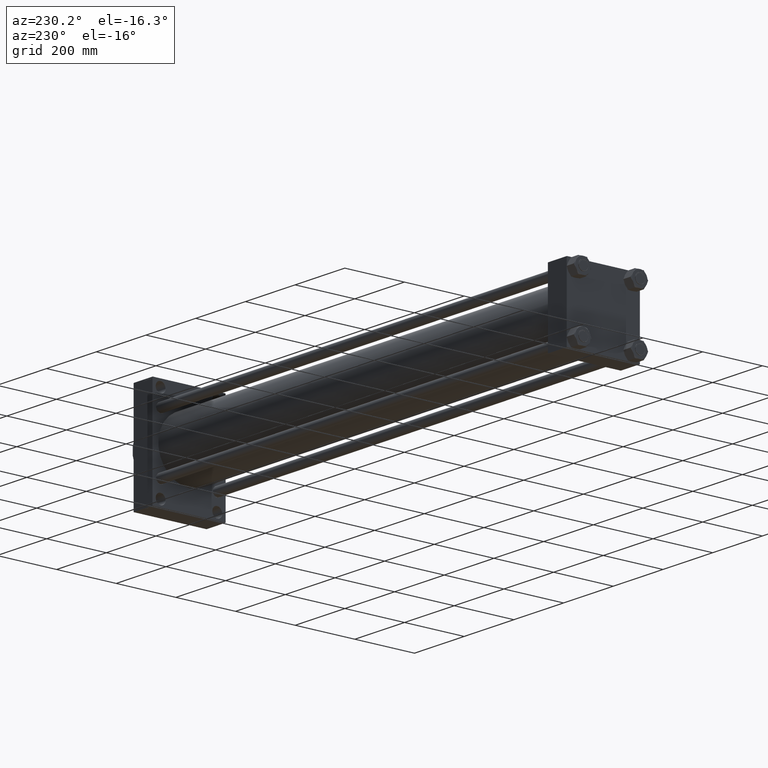
[diagram: clean part render]
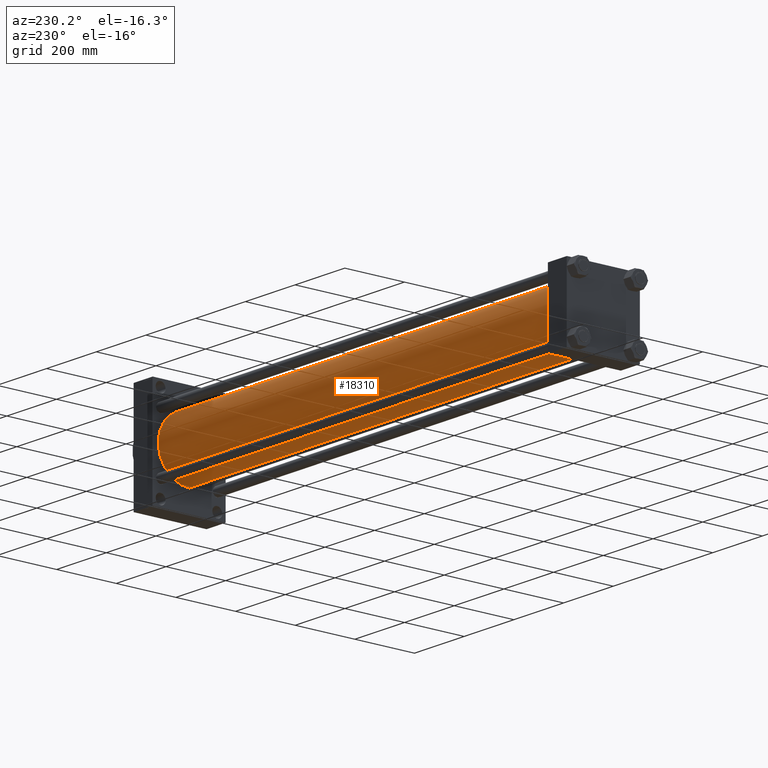
[diagram: same view with one face highlighted and labeled with its STEP entity id]
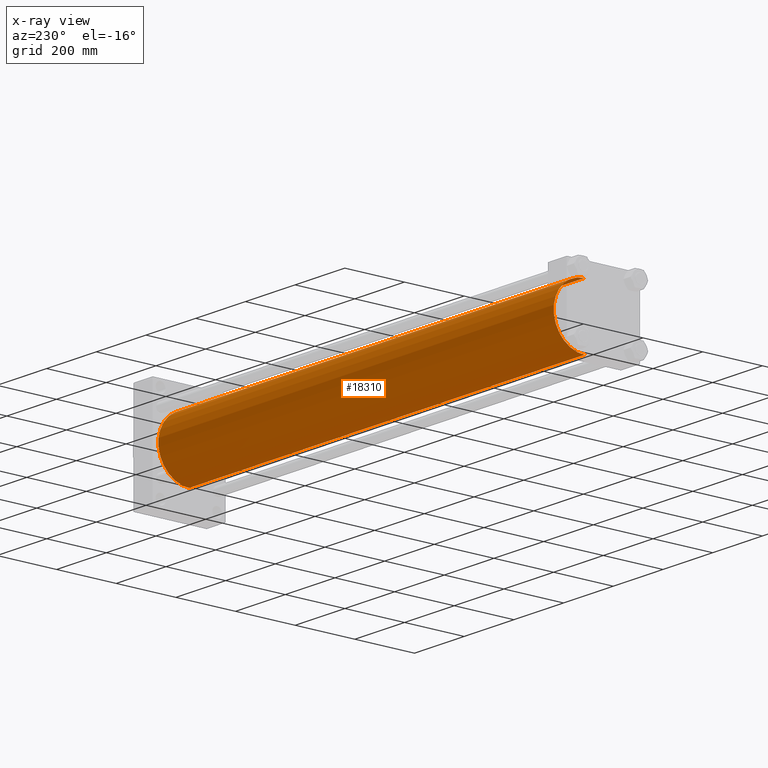
[diagram: x-ray of the same camera — body ghosted, the highlighted face saturated]
A machine part, auxiliary view. The second image highlights one B-rep face of the part: STEP entity #18310.
The next image is the same camera in x-ray: the body ghosted, the highlighted face saturated — about 0% of this face is hidden behind the body in this view.
In plain terms, the highlighted cylindrical surface (partial cylindrical patch) has radius 103 mm, axis along (-1, -0, -0).
Its self-contained STEP definition (entity closure, byte-faithful):
#3579 = AXIS2_PLACEMENT_3D ( 'NONE', #23454, #38129, #5592 ) ;
#4600 = CARTESIAN_POINT ( 'NONE',  ( 1667.000000000000000, -2.602085213965210642E-15, 103.0000000000000000 ) ) ;
#5155 = DIRECTION ( 'NONE',  ( 1.000000000000000000, -0.000000000000000000, -0.000000000000000000 ) ) ;
#5592 = DIRECTION ( 'NONE',  ( 0.000000000000000000, 0.000000000000000000, 1.000000000000000000 ) ) ;
#7918 = EDGE_CURVE ( 'NONE', #10544, #17189, #13099, .T. ) ;
#9227 = CYLINDRICAL_SURFACE ( 'NONE', #3579, 103.0000000000000000 ) ;
#10498 = VECTOR ( 'NONE', #21963, 1000.000000000000000 ) ;
#10544 = VERTEX_POINT ( 'NONE', #23496 ) ;
#12048 = ORIENTED_EDGE ( 'NONE', *, *, #18460, .F. ) ;
#12835 = FACE_OUTER_BOUND ( 'NONE', #30130, .T. ) ;
#13099 = LINE ( 'NONE', #16942, #42860 ) ;
#13894 = ORIENTED_EDGE ( 'NONE', *, *, #43588, .F. ) ;
#15098 = CARTESIAN_POINT ( 'NONE',  ( 1667.000000000000000, -2.602085213965210642E-15, 0.000000000000000000 ) ) ;
#15792 = CARTESIAN_POINT ( 'NONE',  ( 1667.000000000000000, -2.602085213965210642E-15, 103.0000000000000000 ) ) ;
#16247 = CARTESIAN_POINT ( 'NONE',  ( 76.00000000000007105, -2.602085213965210642E-15, 0.000000000000000000 ) ) ;
#16942 = CARTESIAN_POINT ( 'NONE',  ( 1667.000000000000000, 1.001177681725252697E-14, -103.0000000000000000 ) ) ;
#17157 = EDGE_CURVE ( 'NONE', #17189, #38064, #45084, .T. ) ;
#17189 = VERTEX_POINT ( 'NONE', #27812 ) ;
#18310 = ADVANCED_FACE ( 'NONE', ( #12835 ), #9227, .T. ) ;
#18460 = EDGE_CURVE ( 'NONE', #40247, #38064, #37617, .T. ) ;
#19893 = AXIS2_PLACEMENT_3D ( 'NONE', #15098, #37261, #40386 ) ;
#20813 = DIRECTION ( 'NONE',  ( 0.000000000000000000, 0.000000000000000000, 1.000000000000000000 ) ) ;
#21446 = CIRCLE ( 'NONE', #19893, 103.0000000000000000 ) ;
#21963 = DIRECTION ( 'NONE',  ( -1.000000000000000000, -0.000000000000000000, -0.000000000000000000 ) ) ;
#23454 = CARTESIAN_POINT ( 'NONE',  ( 1667.000000000000000, -2.602085213965210642E-15, 0.000000000000000000 ) ) ;
#23496 = CARTESIAN_POINT ( 'NONE',  ( 1667.000000000000000, 1.001177681725252697E-14, -103.0000000000000000 ) ) ;
#27812 = CARTESIAN_POINT ( 'NONE',  ( 76.00000000000007105, 1.001177681725252697E-14, -103.0000000000000000 ) ) ;
#28761 = ORIENTED_EDGE ( 'NONE', *, *, #17157, .T. ) ;
#30130 = EDGE_LOOP ( 'NONE', ( #13894, #36292, #28761, #12048 ) ) ;
#34330 = AXIS2_PLACEMENT_3D ( 'NONE', #16247, #5155, #20813 ) ;
#36292 = ORIENTED_EDGE ( 'NONE', *, *, #7918, .T. ) ;
#37261 = DIRECTION ( 'NONE',  ( 1.000000000000000000, 0.000000000000000000, 0.000000000000000000 ) ) ;
#37617 = LINE ( 'NONE', #4600, #10498 ) ;
#38064 = VERTEX_POINT ( 'NONE', #46377 ) ;
#38129 = DIRECTION ( 'NONE',  ( -1.000000000000000000, -0.000000000000000000, -0.000000000000000000 ) ) ;
#40247 = VERTEX_POINT ( 'NONE', #15792 ) ;
#40386 = DIRECTION ( 'NONE',  ( 0.000000000000000000, 0.000000000000000000, -1.000000000000000000 ) ) ;
#41990 = DIRECTION ( 'NONE',  ( -1.000000000000000000, -0.000000000000000000, -0.000000000000000000 ) ) ;
#42860 = VECTOR ( 'NONE', #41990, 1000.000000000000000 ) ;
#43588 = EDGE_CURVE ( 'NONE', #10544, #40247, #21446, .T. ) ;
#45084 = CIRCLE ( 'NONE', #34330, 103.0000000000000000 ) ;
#46377 = CARTESIAN_POINT ( 'NONE',  ( 76.00000000000007105, -2.602085213965210642E-15, 103.0000000000000000 ) ) ;